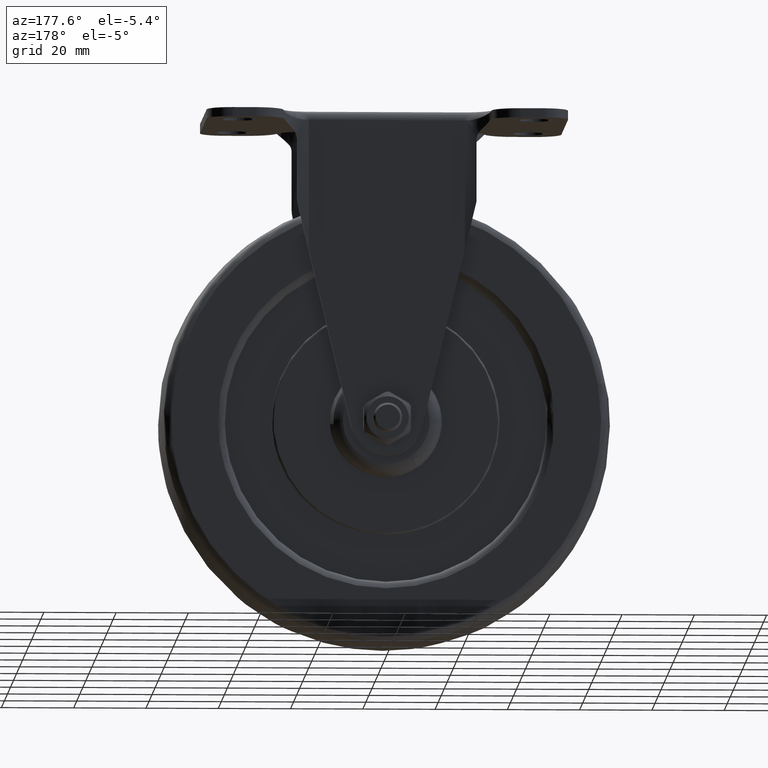
[diagram: clean part render]
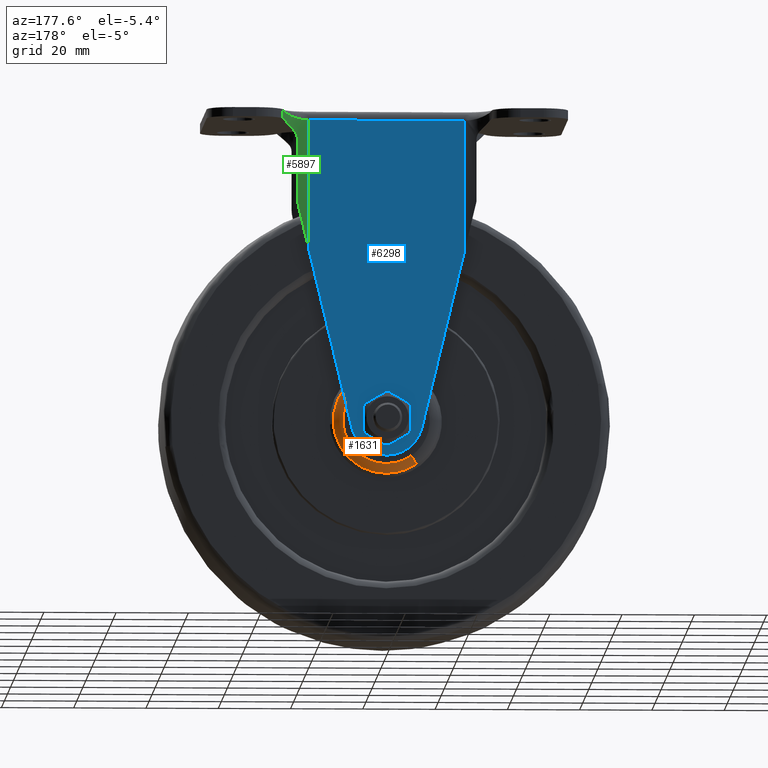
[diagram: same view with three faces highlighted in distinct colors, each labeled with its STEP entity id]
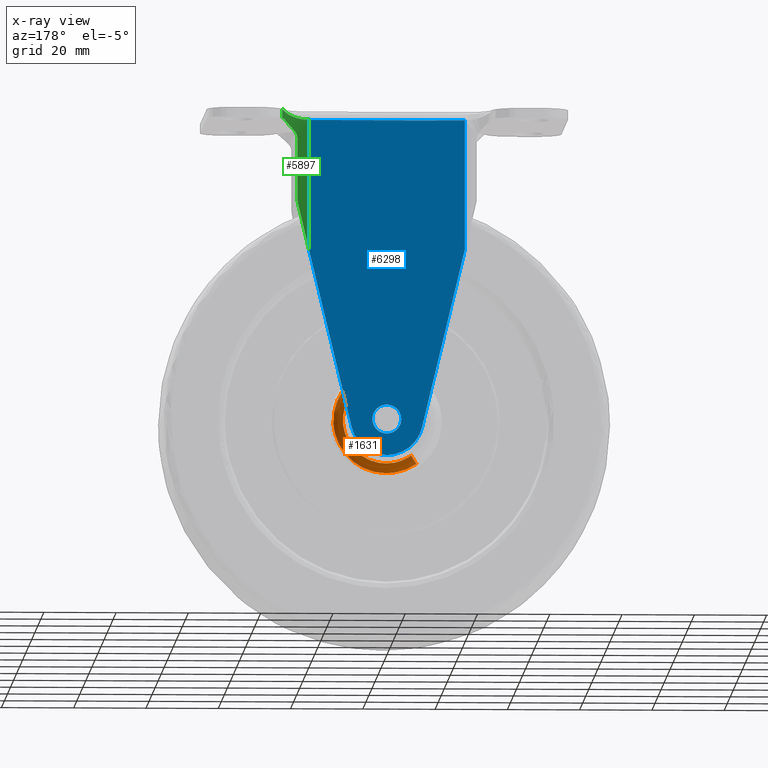
[diagram: x-ray of the same camera — body ghosted, the three highlighted faces saturated]
A machine part, auxiliary view with three faces highlighted in distinct colors.
The next image is the same camera in x-ray (body ghosted, the three faces saturated) — at least one of them is partly hidden behind the body in this view.
Their STEP definitions:

[orange] entity #1631 — the highlighted face is a freeform B-spline surface patch.
#87=CARTESIAN_POINT('',(5.123576198288628,13.545236260911580,13.640949290742350));
#88=VERTEX_POINT('',#87);
#94=CARTESIAN_POINT('',(0.0,13.545236260913260,14.571428571428561));
#95=VERTEX_POINT('',#94);
#96=CARTESIAN_POINT('',(5.123576198288628,13.545236260911583,13.640949290742350));
#97=CARTESIAN_POINT('',(2.646279054127887,13.545236260913262,14.571428571428566));
#98=CARTESIAN_POINT('',(0.0,13.545236260913260,14.571428571428561));
#106=(BOUNDED_CURVE()B_SPLINE_CURVE(2,(#96,#97,#98),.UNSPECIFIED.,.F.,.U.)B_SPLINE_CURVE_WITH_KNOTS((3,3),(0.440284170898653,0.500000000000000),.UNSPECIFIED.)CURVE()GEOMETRIC_REPRESENTATION_ITEM()RATIONAL_B_SPLINE_CURVE((0.893499554635452,0.930038554401569,1.0))REPRESENTATION_ITEM(''));
#107=EDGE_CURVE('',#88,#95,#106,.T.);
#109=CARTESIAN_POINT('',(-12.400205306068180,13.545236261041911,7.652544607994791));
#110=VERTEX_POINT('',#109);
#111=CARTESIAN_POINT('',(0.0,13.545236260913260,14.571428571428561));
#112=CARTESIAN_POINT('',(-8.130351149625597,13.545236260913256,14.571428571428568));
#113=CARTESIAN_POINT('',(-12.400205306068180,13.545236261041909,7.652544607994791));
#121=(BOUNDED_CURVE()B_SPLINE_CURVE(2,(#111,#112,#113),.UNSPECIFIED.,.F.,.U.)B_SPLINE_CURVE_WITH_KNOTS((3,3),(0.500000000000000,0.660237044387501),.UNSPECIFIED.)CURVE()GEOMETRIC_REPRESENTATION_ITEM()RATIONAL_B_SPLINE_CURVE((1.0,0.812270625184763,0.865190851690382))REPRESENTATION_ITEM(''));
#122=EDGE_CURVE('',#95,#110,#121,.T.);
#124=CARTESIAN_POINT('',(-8.349214986572807,13.545236260942380,-11.942241821355100));
#125=VERTEX_POINT('',#124);
#141=CARTESIAN_POINT('',(0.0,13.545236260913260,-14.571428571428561));
#142=VERTEX_POINT('',#141);
#143=CARTESIAN_POINT('',(-8.349214986572807,13.545236260942387,-11.942241821355100));
#144=CARTESIAN_POINT('',(-4.588575930916207,13.545236260913263,-14.571428571428557));
#145=CARTESIAN_POINT('',(0.0,13.545236260913260,-14.571428571428561));
#153=(BOUNDED_CURVE()B_SPLINE_CURVE(2,(#143,#144,#145),.UNSPECIFIED.,.F.,.U.)B_SPLINE_CURVE_WITH_KNOTS((3,3),(0.901511728853335,1.0),.UNSPECIFIED.)CURVE()GEOMETRIC_REPRESENTATION_ITEM()RATIONAL_B_SPLINE_CURVE((0.860141114567323,0.884613812993925,1.0))REPRESENTATION_ITEM(''));
#154=EDGE_CURVE('',#125,#142,#153,.T.);
#156=CARTESIAN_POINT('',(14.544249919868321,13.545236260885691,-0.889564433381654));
#157=VERTEX_POINT('',#156);
#158=CARTESIAN_POINT('',(0.0,13.545236260913260,-14.571428571428561));
#159=CARTESIAN_POINT('',(13.707431260326615,13.545236260913260,-14.571428571428566));
#160=CARTESIAN_POINT('',(14.544249919868314,13.545236260885696,-0.889564433381654));
#168=(BOUNDED_CURVE()B_SPLINE_CURVE(2,(#158,#159,#160),.UNSPECIFIED.,.F.,.U.)B_SPLINE_CURVE_WITH_KNOTS((3,3),(0.0,0.239332962238209),.UNSPECIFIED.)CURVE()GEOMETRIC_REPRESENTATION_ITEM()RATIONAL_B_SPLINE_CURVE((1.0,0.719603993287570,0.976072041665145))REPRESENTATION_ITEM(''));
#169=EDGE_CURVE('',#142,#157,#168,.T.);
#241=CARTESIAN_POINT('',(14.544249919868316,13.545236260885698,-0.889564433381654));
#242=CARTESIAN_POINT('',(14.571428571428566,13.545236260913256,-0.445197408224042));
#243=CARTESIAN_POINT('',(14.571428571428561,13.545236260913260,1.211545E-015));
#244=CARTESIAN_POINT('',(14.571428571428559,13.545236260913265,10.092311251529720));
#245=CARTESIAN_POINT('',(5.123576198288629,13.545236260911587,13.640949290742343));
#253=(BOUNDED_CURVE()B_SPLINE_CURVE(2,(#241,#242,#243,#244,#245),.UNSPECIFIED.,.F.,.U.)B_SPLINE_CURVE_WITH_KNOTS((3,2,3),(0.239332962238209,0.250000000000000,0.440284170898653),.UNSPECIFIED.)CURVE()GEOMETRIC_REPRESENTATION_ITEM()RATIONAL_B_SPLINE_CURVE((0.976072041665144,0.987502787898977,1.0,0.777068226784978,0.893499554635451))REPRESENTATION_ITEM(''));
#254=EDGE_CURVE('',#157,#88,#253,.T.);
#1514=CARTESIAN_POINT('',(-6.791868989762858,14.996419779778936,-9.714703904223557));
#1515=CARTESIAN_POINT('',(-6.513838606037013,14.996419779778943,-9.909084089153172));
#1516=CARTESIAN_POINT('',(-6.225146268527016,14.996419779778940,-10.087244928932920));
#1517=CARTESIAN_POINT('',(3.862098660405905,14.996419779778938,-16.312391197459931));
#1518=CARTESIAN_POINT('',(10.087244928932920,14.996419779778940,-6.225146268527014));
#1519=CARTESIAN_POINT('',(16.312391197459931,14.996419779778938,3.862098660405906));
#1520=CARTESIAN_POINT('',(6.225146268527017,14.996419779778940,10.087244928932920));
#1521=CARTESIAN_POINT('',(-3.862098660405903,14.996419779778938,16.312391197459945));
#1522=CARTESIAN_POINT('',(-10.087244928932920,14.996419779778940,6.225146268527020));
#1523=CARTESIAN_POINT('',(-7.877183417388174,15.089040963640704,-11.267076060290421));
#1524=CARTESIAN_POINT('',(-7.554724852372220,15.089040963640697,-11.492517447882598));
#1525=CARTESIAN_POINT('',(-7.219900594544455,15.089040963640695,-11.699147701625167));
#1526=CARTESIAN_POINT('',(4.479247107080712,15.089040963640699,-18.919048296169631));
#1527=CARTESIAN_POINT('',(11.699147701625167,15.089040963640695,-7.219900594544453));
#1528=CARTESIAN_POINT('',(18.919048296169631,15.089040963640699,4.479247107080713));
#1529=CARTESIAN_POINT('',(7.219900594544455,15.089040963640695,11.699147701625167));
#1530=CARTESIAN_POINT('',(-4.479247107080712,15.089040963640699,18.919048296169631));
#1531=CARTESIAN_POINT('',(-11.699147701625167,15.089040963640695,7.219900594544457));
#1532=CARTESIAN_POINT('',(-8.390707251818743,13.417776209095926,-12.001591406033077));
#1533=CARTESIAN_POINT('',(-8.047227193462103,13.417776209095926,-12.241729610959753));
#1534=CARTESIAN_POINT('',(-7.690575306692685,13.417776209095926,-12.461830359749698));
#1535=CARTESIAN_POINT('',(4.771255053057014,13.417776209095928,-20.152405666442380));
#1536=CARTESIAN_POINT('',(12.461830359749698,13.417776209095926,-7.690575306692684));
#1537=CARTESIAN_POINT('',(20.152405666442380,13.417776209095928,4.771255053057015));
#1538=CARTESIAN_POINT('',(7.690575306692688,13.417776209095926,12.461830359749698));
#1539=CARTESIAN_POINT('',(-4.771255053057012,13.417776209095928,20.152405666442380));
#1540=CARTESIAN_POINT('',(-12.461830359749698,13.417776209095926,7.690575306692688));
#1548=(BOUNDED_SURFACE()B_SPLINE_SURFACE(2,2,((#1514,#1523,#1532),(#1515,#1524,#1533),(#1516,#1525,#1534),(#1517,#1526,#1535),(#1518,#1527,#1536),(#1519,#1528,#1537),(#1520,#1529,#1538),(#1521,#1530,#1539),(#1522,#1531,#1540)),.UNSPECIFIED.,.F.,.F.,.U.)B_SPLINE_SURFACE_WITH_KNOTS((3,2,2,2,3),(3,3),(0.0,0.970507674904327,25.233222686240659,49.495937697576977,73.758652708913317),(0.0,3.474786528560213),.UNSPECIFIED.)GEOMETRIC_REPRESENTATION_ITEM()RATIONAL_B_SPLINE_SURFACE(((0.905114274917552,0.764990657273246,0.904921484758799),(0.915094511106732,0.773425821377578,0.914899595148648),(0.925942593021446,0.782594477252381,0.925745366412108),(0.654740286514920,0.553377861784300,0.654600826242027),(0.925942593021446,0.782594477252381,0.925745366412108),(0.654740286514920,0.553377861784300,0.654600826242027),(0.925942593021446,0.782594477252381,0.925745366412108),(0.654740286514920,0.553377861784300,0.654600826242027),(0.925942593021446,0.782594477252381,0.925745366412108)))REPRESENTATION_ITEM('')SURFACE());
#1549=ORIENTED_EDGE('',*,*,#154,.F.);
#1550=CARTESIAN_POINT('',(-6.875824106904557,15.000000000000060,-9.834787382738650));
#1551=VERTEX_POINT('',#1550);
#1552=CARTESIAN_POINT('',(-6.875824106904557,15.000000000000057,-9.834787382738652));
#1553=CARTESIAN_POINT('',(-7.848308788803702,14.999999999398300,-11.225774111150342));
#1554=CARTESIAN_POINT('',(-8.349214986572807,13.545236260942380,-11.942241821355099));
#1562=(BOUNDED_CURVE()B_SPLINE_CURVE(2,(#1552,#1553,#1554),.UNSPECIFIED.,.F.,.U.)B_SPLINE_CURVE_WITH_KNOTS((3,3),(-1.637759404915586,-0.363205550370776),.UNSPECIFIED.)CURVE()GEOMETRIC_REPRESENTATION_ITEM()RATIONAL_B_SPLINE_CURVE((0.892964892516302,0.777131239914663,0.892789631603558))REPRESENTATION_ITEM(''));
#1563=EDGE_CURVE('',#1551,#125,#1562,.T.);
#1564=ORIENTED_EDGE('',*,*,#1563,.F.);
#1565=CARTESIAN_POINT('',(0.0,15.0,-12.0));
#1566=VERTEX_POINT('',#1565);
#1567=CARTESIAN_POINT('',(-6.875824106904557,15.000000000000064,-9.834787382738650));
#1568=CARTESIAN_POINT('',(-3.778827237228013,14.999999999999996,-11.999999999999996));
#1569=CARTESIAN_POINT('',(0.0,15.0,-12.0));
#1577=(BOUNDED_CURVE()B_SPLINE_CURVE(2,(#1567,#1568,#1569),.UNSPECIFIED.,.F.,.U.)B_SPLINE_CURVE_WITH_KNOTS((3,3),(0.901511728853268,1.0),.UNSPECIFIED.)CURVE()GEOMETRIC_REPRESENTATION_ITEM()RATIONAL_B_SPLINE_CURVE((0.860141114567290,0.884613812993847,1.0))REPRESENTATION_ITEM(''));
#1578=EDGE_CURVE('',#1551,#1566,#1577,.T.);
#1579=ORIENTED_EDGE('',*,*,#1578,.T.);
#1580=CARTESIAN_POINT('',(0.0,15.0,12.0));
#1581=VERTEX_POINT('',#1580);
#1582=CARTESIAN_POINT('',(0.0,15.0,-12.0));
#1583=CARTESIAN_POINT('',(12.0,14.999999999999995,-11.999999999999998));
#1584=CARTESIAN_POINT('',(12.0,15.0,1.211545E-015));
#1585=CARTESIAN_POINT('',(12.0,14.999999999999995,12.0));
#1586=CARTESIAN_POINT('',(0.0,15.0,12.0));
#1594=(BOUNDED_CURVE()B_SPLINE_CURVE(2,(#1582,#1583,#1584,#1585,#1586),.UNSPECIFIED.,.F.,.U.)B_SPLINE_CURVE_WITH_KNOTS((3,2,3),(0.0,0.250000000000000,0.500000000000000),.UNSPECIFIED.)CURVE()GEOMETRIC_REPRESENTATION_ITEM()RATIONAL_B_SPLINE_CURVE((1.0,0.707106781186548,1.0,0.707106781186548,1.0))REPRESENTATION_ITEM(''));
#1595=EDGE_CURVE('',#1566,#1581,#1594,.T.);
#1596=ORIENTED_EDGE('',*,*,#1595,.T.);
#1597=CARTESIAN_POINT('',(-10.211933788243980,15.000000000000060,6.302095564267949));
#1598=VERTEX_POINT('',#1597);
#1599=CARTESIAN_POINT('',(0.0,15.0,12.0));
#1600=CARTESIAN_POINT('',(-6.695583299065484,15.000000000000002,12.0));
#1601=CARTESIAN_POINT('',(-10.211933788243975,15.000000000000062,6.302095564267949));
#1609=(BOUNDED_CURVE()B_SPLINE_CURVE(2,(#1599,#1600,#1601),.UNSPECIFIED.,.F.,.U.)B_SPLINE_CURVE_WITH_KNOTS((3,3),(0.500000000000000,0.660237044375329),.UNSPECIFIED.)CURVE()GEOMETRIC_REPRESENTATION_ITEM()RATIONAL_B_SPLINE_CURVE((1.0,0.812270625199024,0.865190851682342))REPRESENTATION_ITEM(''));
#1610=EDGE_CURVE('',#1581,#1598,#1609,.T.);
#1611=ORIENTED_EDGE('',*,*,#1610,.T.);
#1612=CARTESIAN_POINT('',(-10.211933788243975,15.000000000000060,6.302095564267948));
#1613=CARTESIAN_POINT('',(-11.656262352766236,14.999999990729282,7.193434738772686));
#1614=CARTESIAN_POINT('',(-12.400205306068189,13.545236261041913,7.652544607994791));
#1622=(BOUNDED_CURVE()B_SPLINE_CURVE(2,(#1612,#1613,#1614),.UNSPECIFIED.,.F.,.U.)B_SPLINE_CURVE_WITH_KNOTS((3,3),(-1.637759398304378,-0.363205550470954),.UNSPECIFIED.)CURVE()GEOMETRIC_REPRESENTATION_ITEM()RATIONAL_B_SPLINE_CURVE((0.913513649318773,0.795014454023248,0.913334356542089))REPRESENTATION_ITEM(''));
#1623=EDGE_CURVE('',#1598,#110,#1622,.T.);
#1624=ORIENTED_EDGE('',*,*,#1623,.T.);
#1625=ORIENTED_EDGE('',*,*,#122,.F.);
#1626=ORIENTED_EDGE('',*,*,#107,.F.);
#1627=ORIENTED_EDGE('',*,*,#254,.F.);
#1628=ORIENTED_EDGE('',*,*,#169,.F.);
#1629=EDGE_LOOP('',(#1549,#1564,#1579,#1596,#1611,#1624,#1625,#1626,#1627,#1628));
#1630=FACE_OUTER_BOUND('',#1629,.T.);
#1631=ADVANCED_FACE('',(#1630),#1548,.T.);

[blue] entity #6298 — the highlighted face is a freeform B-spline surface patch.
#2832=CARTESIAN_POINT('',(3.142506254112645,18.499980000000001,-2.474803920083953));
#2833=VERTEX_POINT('',#2832);
#2839=CARTESIAN_POINT('',(-4.0,18.499980000000001,0.0));
#2840=VERTEX_POINT('',#2839);
#2841=CARTESIAN_POINT('',(3.142506254112645,18.499979999999997,-2.474803920083953));
#2842=CARTESIAN_POINT('',(1.941375338522439,18.499979999999997,-4.000000000000000));
#2843=CARTESIAN_POINT('',(0.0,18.499980000000001,-4.0));
#2844=CARTESIAN_POINT('',(-4.000000000000000,18.499980000000004,-4.000000000000000));
#2845=CARTESIAN_POINT('',(-4.0,18.499980000000001,0.0));
#2853=(BOUNDED_CURVE()B_SPLINE_CURVE(2,(#2841,#2842,#2843,#2844,#2845),.UNSPECIFIED.,.F.,.U.)B_SPLINE_CURVE_WITH_KNOTS((3,2,3),(0.107127547783470,0.250000000000000,0.500000000000000),.UNSPECIFIED.)CURVE()GEOMETRIC_REPRESENTATION_ITEM()RATIONAL_B_SPLINE_CURVE((0.856547223684466,0.832614510362117,1.0,0.707106781186548,1.0))REPRESENTATION_ITEM(''));
#2854=EDGE_CURVE('',#2833,#2840,#2853,.T.);
#2856=CARTESIAN_POINT('',(2.650477976108105,18.499980000000001,2.995824844372100));
#2857=VERTEX_POINT('',#2856);
#2858=CARTESIAN_POINT('',(-4.0,18.499980000000001,0.0));
#2859=CARTESIAN_POINT('',(-4.000000000000000,18.499980000000004,4.000000000000000));
#2860=CARTESIAN_POINT('',(0.0,18.499980000000001,4.0));
#2861=CARTESIAN_POINT('',(1.515462742461735,18.499980000000001,4.000000000000000));
#2862=CARTESIAN_POINT('',(2.650477976108105,18.499980000000004,2.995824844372100));
#2870=(BOUNDED_CURVE()B_SPLINE_CURVE(2,(#2858,#2859,#2860,#2861,#2862),.UNSPECIFIED.,.F.,.U.)B_SPLINE_CURVE_WITH_KNOTS((3,2,3),(0.500000000000000,0.750000000000000,0.865779776305805),.UNSPECIFIED.)CURVE()GEOMETRIC_REPRESENTATION_ITEM()RATIONAL_B_SPLINE_CURVE((1.0,0.707106781186548,1.0,0.864355554577165,0.854350177539777))REPRESENTATION_ITEM(''));
#2871=EDGE_CURVE('',#2840,#2857,#2870,.T.);
#2947=CARTESIAN_POINT('',(4.0,18.499980000000001,0.0));
#2948=VERTEX_POINT('',#2947);
#2949=CARTESIAN_POINT('',(2.650477976108105,18.499980000000004,2.995824844372100));
#2950=CARTESIAN_POINT('',(4.000000000000000,18.499980000000001,1.801870394961156));
#2951=CARTESIAN_POINT('',(4.0,18.499980000000001,0.0));
#2959=(BOUNDED_CURVE()B_SPLINE_CURVE(2,(#2949,#2950,#2951),.UNSPECIFIED.,.F.,.U.)B_SPLINE_CURVE_WITH_KNOTS((3,3),(0.865779776305805,1.0),.UNSPECIFIED.)CURVE()GEOMETRIC_REPRESENTATION_ITEM()RATIONAL_B_SPLINE_CURVE((0.854350177539777,0.842751226609383,1.0))REPRESENTATION_ITEM(''));
#2960=EDGE_CURVE('',#2857,#2948,#2959,.T.);
#2962=CARTESIAN_POINT('',(4.0,18.499980000000001,0.0));
#2963=CARTESIAN_POINT('',(4.0,18.499979999999997,-1.385958330644380));
#2964=CARTESIAN_POINT('',(3.142506254112644,18.499979999999997,-2.474803920083952));
#2972=(BOUNDED_CURVE()B_SPLINE_CURVE(2,(#2962,#2963,#2964),.UNSPECIFIED.,.F.,.U.)B_SPLINE_CURVE_WITH_KNOTS((3,3),(0.0,0.107127547783470),.UNSPECIFIED.)CURVE()GEOMETRIC_REPRESENTATION_ITEM()RATIONAL_B_SPLINE_CURVE((1.0,0.874492270824430,0.856547223684466))REPRESENTATION_ITEM(''));
#2973=EDGE_CURVE('',#2948,#2833,#2972,.T.);
#3957=CARTESIAN_POINT('',(-21.590030418878950,18.499980000000001,83.0));
#3958=VERTEX_POINT('',#3957);
#4034=CARTESIAN_POINT('',(21.590029999999999,18.499980000000001,83.0));
#4035=VERTEX_POINT('',#4034);
#4049=CARTESIAN_POINT('',(-21.590030418878950,18.499980000000001,83.0));
#4050=CARTESIAN_POINT('',(21.590029999999999,18.499980000000001,83.0));
#4051=QUASI_UNIFORM_CURVE('',1,(#4049,#4050),.UNSPECIFIED.,.F.,.U.);
#4052=EDGE_CURVE('',#3958,#4035,#4051,.T.);
#4878=CARTESIAN_POINT('',(9.724006395502389,18.499980000000001,-2.333117345066995));
#4879=VERTEX_POINT('',#4878);
#4902=CARTESIAN_POINT('',(-9.724018100333170,18.499980000000001,-2.333117239733630));
#4903=VERTEX_POINT('',#4902);
#4909=CARTESIAN_POINT('',(9.724006395502389,18.499980000000001,-2.333117345066994));
#4910=CARTESIAN_POINT('',(7.884445989899220,18.499980000000004,-9.999968003760941));
#4911=CARTESIAN_POINT('',(-0.000005893940183,18.499980000000001,-9.999967961057587));
#4912=CARTESIAN_POINT('',(-7.884457777779587,18.499980000000004,-9.999967918354237));
#4913=CARTESIAN_POINT('',(-9.724018100333172,18.499980000000001,-2.333117239733629));
#4921=(BOUNDED_CURVE()B_SPLINE_CURVE(2,(#4909,#4910,#4911,#4912,#4913),.UNSPECIFIED.,.F.,.U.)B_SPLINE_CURVE_WITH_KNOTS((3,2,3),(0.0,0.500000000000000,1.0),.UNSPECIFIED.)CURVE()GEOMETRIC_REPRESENTATION_ITEM()RATIONAL_B_SPLINE_CURVE((1.0,0.785275408100328,1.0,0.785275408100328,1.0))REPRESENTATION_ITEM(''));
#4922=EDGE_CURVE('',#4879,#4903,#4921,.T.);
#4932=CARTESIAN_POINT('',(21.590029999999999,18.499980000000001,47.121649462871098));
#4933=VERTEX_POINT('',#4932);
#4969=CARTESIAN_POINT('',(21.590029999999999,18.499980000000001,47.121649462871098));
#4970=CARTESIAN_POINT('',(9.724006395502389,18.499980000000001,-2.333117345066995));
#4971=QUASI_UNIFORM_CURVE('',1,(#4969,#4970),.UNSPECIFIED.,.F.,.U.);
#4972=EDGE_CURVE('',#4933,#4879,#4971,.T.);
#5054=CARTESIAN_POINT('',(-21.590030418878950,18.499980000000001,47.121604892278498));
#5055=VERTEX_POINT('',#5054);
#5069=CARTESIAN_POINT('',(-9.724018100333170,18.499980000000001,-2.333117239733630));
#5070=CARTESIAN_POINT('',(-21.590030418878950,18.499980000000001,47.121604892278498));
#5071=QUASI_UNIFORM_CURVE('',1,(#5069,#5070),.UNSPECIFIED.,.F.,.U.);
#5072=EDGE_CURVE('',#4903,#5055,#5071,.T.);
#5878=CARTESIAN_POINT('',(21.590029999999999,18.499980000000001,47.121649462871098));
#5879=CARTESIAN_POINT('',(21.590029999999999,18.499980000000001,83.0));
#5880=QUASI_UNIFORM_CURVE('',1,(#5878,#5879),.UNSPECIFIED.,.F.,.U.);
#5881=EDGE_CURVE('',#4933,#4035,#5880,.T.);
#5918=CARTESIAN_POINT('',(-21.590030418878950,18.499980000000001,47.121604892278498));
#5919=CARTESIAN_POINT('',(-21.590030418878950,18.499980000000001,83.0));
#5920=QUASI_UNIFORM_CURVE('',1,(#5918,#5919),.UNSPECIFIED.,.F.,.U.);
#5921=EDGE_CURVE('',#5055,#3958,#5920,.T.);
#6279=CARTESIAN_POINT('',(-23.746874758454140,18.499980000000001,-14.645316180460251));
#6280=CARTESIAN_POINT('',(23.746875111694830,18.499980000000001,-14.645316180460251));
#6281=CARTESIAN_POINT('',(-23.746874758454140,18.499980000000001,87.645350713856359));
#6282=CARTESIAN_POINT('',(23.746875111694830,18.499980000000001,87.645350713856359));
#6283=B_SPLINE_SURFACE_WITH_KNOTS('',1,1,((#6279,#6281),(#6280,#6282)),.UNSPECIFIED.,.F.,.F.,.U.,(2,2),(2,2),(0.0,47.493749870148967),(0.0,102.290666894316600),.UNSPECIFIED.);
#6284=ORIENTED_EDGE('',*,*,#5921,.T.);
#6285=ORIENTED_EDGE('',*,*,#4052,.T.);
#6286=ORIENTED_EDGE('',*,*,#5881,.F.);
#6287=ORIENTED_EDGE('',*,*,#4972,.T.);
#6288=ORIENTED_EDGE('',*,*,#4922,.T.);
#6289=ORIENTED_EDGE('',*,*,#5072,.T.);
#6290=EDGE_LOOP('',(#6284,#6285,#6286,#6287,#6288,#6289));
#6291=FACE_OUTER_BOUND('',#6290,.T.);
#6292=ORIENTED_EDGE('',*,*,#2871,.F.);
#6293=ORIENTED_EDGE('',*,*,#2854,.F.);
#6294=ORIENTED_EDGE('',*,*,#2973,.F.);
#6295=ORIENTED_EDGE('',*,*,#2960,.F.);
#6296=EDGE_LOOP('',(#6292,#6293,#6294,#6295));
#6297=FACE_BOUND('',#6296,.T.);
#6298=ADVANCED_FACE('',(#6291,#6297),#6283,.F.);

[green] entity #5897 — the highlighted face is a freeform B-spline surface patch.
#4034=CARTESIAN_POINT('',(21.590029999999999,18.499980000000001,83.0));
#4035=VERTEX_POINT('',#4034);
#4095=CARTESIAN_POINT('',(29.102522374275502,23.749987577018750,85.500000000000000));
#4096=VERTEX_POINT('',#4095);
#4109=CARTESIAN_POINT('',(21.590029999999999,18.499980000000001,83.000000000000071));
#4110=CARTESIAN_POINT('',(21.711790605051871,18.501588317992439,83.001071944880366));
#4111=CARTESIAN_POINT('',(21.957925607150528,18.504839479172841,83.003238845703905));
#4112=CARTESIAN_POINT('',(22.330039583424831,18.531522085587881,83.020289844135533));
#4113=CARTESIAN_POINT('',(22.708002026400649,18.575317826469160,83.047366779203912));
#4114=CARTESIAN_POINT('',(23.090834269287161,18.638778771275501,83.085521736476977));
#4115=CARTESIAN_POINT('',(23.477458348078610,18.722395511679341,83.134462313429381));
#4116=CARTESIAN_POINT('',(23.866694625778241,18.827174938461351,83.194268279885378));
#4117=CARTESIAN_POINT('',(24.257260889633500,18.953914579701149,83.264917180136806));
#4118=CARTESIAN_POINT('',(24.647772933745230,19.103391481513221,83.346412528096920));
#4119=CARTESIAN_POINT('',(25.036742036796589,19.276294501575240,83.438760427646613));
#4120=CARTESIAN_POINT('',(25.422588805972371,19.473237623202401,83.541929177040188));
#4121=CARTESIAN_POINT('',(25.803598281794230,19.694709791556761,83.656041207156761));
#4122=CARTESIAN_POINT('',(26.171564137078139,19.936892381692012,83.778446252107912));
#4123=CARTESIAN_POINT('',(26.536838974970159,20.207211349235600,83.914755119418118));
#4124=CARTESIAN_POINT('',(26.907991514085069,20.516212852850689,84.069057689810521));
#4125=CARTESIAN_POINT('',(27.295812949928830,20.883171862531459,84.247583182219984));
#4126=CARTESIAN_POINT('',(27.691465474560371,21.313841996524729,84.450509726590411));
#4127=CARTESIAN_POINT('',(28.084961277599010,21.813354005685330,84.677786206511044));
#4128=CARTESIAN_POINT('',(28.462905096175259,22.386517348261080,84.929512542607867));
#4129=CARTESIAN_POINT('',(28.817382658670692,23.034333273765430,85.205377335450592));
#4130=CARTESIAN_POINT('',(29.005317620940790,23.506019458186021,85.399562488608197));
#4131=CARTESIAN_POINT('',(29.102522374275399,23.749987577018810,85.500000000000014));
#4132=B_SPLINE_CURVE_WITH_KNOTS('',3,(#4109,#4110,#4111,#4112,#4113,#4114,#4115,#4116,#4117,#4118,#4119,#4120,#4121,#4122,#4123,#4124,#4125,#4126,#4127,#4128,#4129,#4130,#4131),.UNSPECIFIED.,.F.,.U.,(4,1,1,1,1,1,1,1,1,1,1,1,1,1,1,1,1,1,1,1,4),(0.0,0.036053215400760,0.072880372469796,0.110510694986473,0.148971575327662,0.188288669315650,0.228485992746466,0.269586017793075,0.311609767868092,0.354576909870388,0.398505843029850,0.443413783805423,0.489316846488398,0.533824169963046,0.583836980559462,0.639366947147413,0.700422408878992,0.767009461033569,0.839132627341154,0.916795294020828,1.0),.UNSPECIFIED.);
#4133=EDGE_CURVE('',#4035,#4096,#4132,.T.);
#4255=CARTESIAN_POINT('',(24.800000000000001,19.172218227186949,77.769462372252988));
#4256=VERTEX_POINT('',#4255);
#4262=CARTESIAN_POINT('',(25.664111917669299,19.615079381391102,79.876114241869104));
#4263=VERTEX_POINT('',#4262);
#4264=CARTESIAN_POINT('',(25.664111917669249,19.615079381391102,79.876114241869104));
#4265=CARTESIAN_POINT('',(25.533815606531022,19.537977637364111,79.744009672459427));
#4266=CARTESIAN_POINT('',(25.414883821789221,19.472544672048919,79.599070921622641));
#4267=CARTESIAN_POINT('',(25.255767939332181,19.389005814152579,79.361927404315665));
#4268=CARTESIAN_POINT('',(25.205955322942120,19.363611190075058,79.279574838560606));
#4269=CARTESIAN_POINT('',(25.136516514887060,19.328989668615002,79.150850292570496));
#4270=CARTESIAN_POINT('',(25.114246999675039,19.318027270639458,79.107043882746851));
#4271=CARTESIAN_POINT('',(25.072060913543670,19.297479657431861,79.018758900925590));
#4272=CARTESIAN_POINT('',(25.052070505921851,19.287857325730929,78.974149712815120));
#4273=CARTESIAN_POINT('',(24.957623290488801,19.242823369235509,78.748800989990769));
#4274=CARTESIAN_POINT('',(24.899530933534461,19.216499719834221,78.561225387914149));
#4275=CARTESIAN_POINT('',(24.850047732467662,19.194338209384629,78.317419680523102));
#4276=CARTESIAN_POINT('',(24.841301486644841,19.190445061332909,78.268073137723036));
#4277=CARTESIAN_POINT('',(24.826303493588291,19.183792387987680,78.169010462133883));
#4278=CARTESIAN_POINT('',(24.820054226272241,19.181033805063649,78.119356443333544));
#4279=CARTESIAN_POINT('',(24.805040284980208,19.174420055928319,77.970029086214950));
#4280=CARTESIAN_POINT('',(24.800000000000001,19.172218227186949,77.869991534281723));
#4281=CARTESIAN_POINT('',(24.800000000000001,19.172218227186949,77.769462372252988));
#4282=B_SPLINE_CURVE_WITH_KNOTS('',3,(#4264,#4265,#4266,#4267,#4268,#4269,#4270,#4271,#4272,#4273,#4274,#4275,#4276,#4277,#4278,#4279,#4280,#4281),.UNSPECIFIED.,.F.,.U.,(4,2,2,2,2,2,2,2,4),(0.0,0.249999999999996,0.374999999999993,0.437499999999993,0.499999999999993,0.749999999999987,0.812499999999990,0.874999999999993,1.0),.UNSPECIFIED.);
#4283=EDGE_CURVE('',#4263,#4256,#4282,.T.);
#4819=CARTESIAN_POINT('',(24.524012235281202,19.057416715549198,59.349790253814902));
#4820=VERTEX_POINT('',#4819);
#4821=CARTESIAN_POINT('',(24.800000000000001,19.172218227186949,61.682939637824298));
#4822=VERTEX_POINT('',#4821);
#4823=CARTESIAN_POINT('',(24.524012235281202,19.057416715549198,59.349790253814902));
#4824=CARTESIAN_POINT('',(24.615812356568810,19.093605850227739,59.732391346020577));
#4825=CARTESIAN_POINT('',(24.684559035065231,19.122555199793599,60.118075655472957));
#4826=CARTESIAN_POINT('',(24.776653065347901,19.161864433251619,60.895729237337562));
#4827=CARTESIAN_POINT('',(24.800000000000001,19.172218227186949,61.287698858745962));
#4828=CARTESIAN_POINT('',(24.800000000000001,19.172218227186949,61.682939637824298));
#4829=B_SPLINE_CURVE_WITH_KNOTS('',3,(#4823,#4824,#4825,#4826,#4827,#4828),.UNSPECIFIED.,.F.,.U.,(4,2,4),(0.0,0.500000000000000,1.0),.UNSPECIFIED.);
#4830=EDGE_CURVE('',#4820,#4822,#4829,.T.);
#4932=CARTESIAN_POINT('',(21.590029999999999,18.499980000000001,47.121649462871098));
#4933=VERTEX_POINT('',#4932);
#4934=CARTESIAN_POINT('',(21.590029999999999,18.499980000000001,47.121649462871090));
#4935=CARTESIAN_POINT('',(23.109975714315610,18.499980000000008,53.456422034342431));
#4936=CARTESIAN_POINT('',(24.524012235281202,19.057416715549198,59.349790253814902));
#4944=(BOUNDED_CURVE()B_SPLINE_CURVE(2,(#4934,#4935,#4936),.UNSPECIFIED.,.F.,.U.)CURVE()GEOMETRIC_REPRESENTATION_ITEM()QUASI_UNIFORM_CURVE()RATIONAL_B_SPLINE_CURVE((1.0,0.982425674174991,1.0))REPRESENTATION_ITEM(''));
#4945=EDGE_CURVE('',#4933,#4820,#4944,.T.);
#5104=CARTESIAN_POINT('',(24.800000000000001,19.172218227186949,61.682939637824298));
#5105=CARTESIAN_POINT('',(24.800000000000001,19.172218227186949,77.769462372252988));
#5106=QUASI_UNIFORM_CURVE('',1,(#5104,#5105),.UNSPECIFIED.,.F.,.U.);
#5107=EDGE_CURVE('',#4822,#4256,#5106,.T.);
#5140=CARTESIAN_POINT('',(28.745237669189049,22.921851549150301,83.0));
#5141=VERTEX_POINT('',#5140);
#5142=CARTESIAN_POINT('',(25.664111917669299,19.615079381391102,79.876114241869104));
#5143=CARTESIAN_POINT('',(27.691559653102811,20.814804492255291,81.931698991356072));
#5144=CARTESIAN_POINT('',(28.745237669188931,22.921851549150301,82.999999999999901));
#5152=(BOUNDED_CURVE()B_SPLINE_CURVE(2,(#5142,#5143,#5144),.UNSPECIFIED.,.F.,.U.)CURVE()GEOMETRIC_REPRESENTATION_ITEM()QUASI_UNIFORM_CURVE()RATIONAL_B_SPLINE_CURVE((1.0,0.959272026097977,1.0))REPRESENTATION_ITEM(''));
#5153=EDGE_CURVE('',#4263,#5141,#5152,.T.);
#5456=CARTESIAN_POINT('',(29.102524228969550,23.750001552711950,83.0));
#5457=VERTEX_POINT('',#5456);
#5458=CARTESIAN_POINT('',(28.745237669189049,22.921851549150301,83.0));
#5459=CARTESIAN_POINT('',(28.947259885844360,23.325840144236626,83.0));
#5460=CARTESIAN_POINT('',(29.102524228969550,23.750001552711950,83.0));
#5468=(BOUNDED_CURVE()B_SPLINE_CURVE(2,(#5458,#5459,#5460),.UNSPECIFIED.,.F.,.U.)CURVE()GEOMETRIC_REPRESENTATION_ITEM()QUASI_UNIFORM_CURVE()RATIONAL_B_SPLINE_CURVE((1.0,0.998409895108222,1.0))REPRESENTATION_ITEM(''));
#5469=EDGE_CURVE('',#5141,#5457,#5468,.T.);
#5864=CARTESIAN_POINT('',(29.176619241649590,23.961542748759271,46.162190699442867));
#5865=CARTESIAN_POINT('',(29.176619241649590,23.961542748759271,86.483445232513930));
#5866=CARTESIAN_POINT('',(27.236693996313523,18.163717339178049,46.162190699442867));
#5867=CARTESIAN_POINT('',(27.236693996313523,18.163717339178049,86.483445232513930));
#5868=CARTESIAN_POINT('',(21.132920072259552,18.513050019465478,46.162190699442874));
#5869=CARTESIAN_POINT('',(21.132920072259552,18.513050019465478,86.483445232513915));
#5877=(BOUNDED_SURFACE()B_SPLINE_SURFACE(1,2,((#5864,#5866,#5868),(#5865,#5867,#5869)),.UNSPECIFIED.,.F.,.F.,.U.)B_SPLINE_SURFACE_WITH_KNOTS((2,2),(3,3),(0.0,40.321254533071063),(0.0,10.827564788910911),.UNSPECIFIED.)GEOMETRIC_REPRESENTATION_ITEM()RATIONAL_B_SPLINE_SURFACE(((1.0,0.791676536126635,0.992795214612556),(1.0,0.791676536126635,0.992795214612556)))REPRESENTATION_ITEM('')SURFACE());
#5878=CARTESIAN_POINT('',(21.590029999999999,18.499980000000001,47.121649462871098));
#5879=CARTESIAN_POINT('',(21.590029999999999,18.499980000000001,83.0));
#5880=QUASI_UNIFORM_CURVE('',1,(#5878,#5879),.UNSPECIFIED.,.F.,.U.);
#5881=EDGE_CURVE('',#4933,#4035,#5880,.T.);
#5882=ORIENTED_EDGE('',*,*,#5881,.T.);
#5883=ORIENTED_EDGE('',*,*,#4133,.T.);
#5884=CARTESIAN_POINT('',(29.102524228969550,23.750001552711950,83.0));
#5885=CARTESIAN_POINT('',(29.102522374275502,23.749987577018750,85.500000000000000));
#5886=QUASI_UNIFORM_CURVE('',1,(#5884,#5885),.UNSPECIFIED.,.F.,.U.);
#5887=EDGE_CURVE('',#5457,#4096,#5886,.T.);
#5888=ORIENTED_EDGE('',*,*,#5887,.F.);
#5889=ORIENTED_EDGE('',*,*,#5469,.F.);
#5890=ORIENTED_EDGE('',*,*,#5153,.F.);
#5891=ORIENTED_EDGE('',*,*,#4283,.T.);
#5892=ORIENTED_EDGE('',*,*,#5107,.F.);
#5893=ORIENTED_EDGE('',*,*,#4830,.F.);
#5894=ORIENTED_EDGE('',*,*,#4945,.F.);
#5895=EDGE_LOOP('',(#5882,#5883,#5888,#5889,#5890,#5891,#5892,#5893,#5894));
#5896=FACE_OUTER_BOUND('',#5895,.T.);
#5897=ADVANCED_FACE('',(#5896),#5877,.F.);